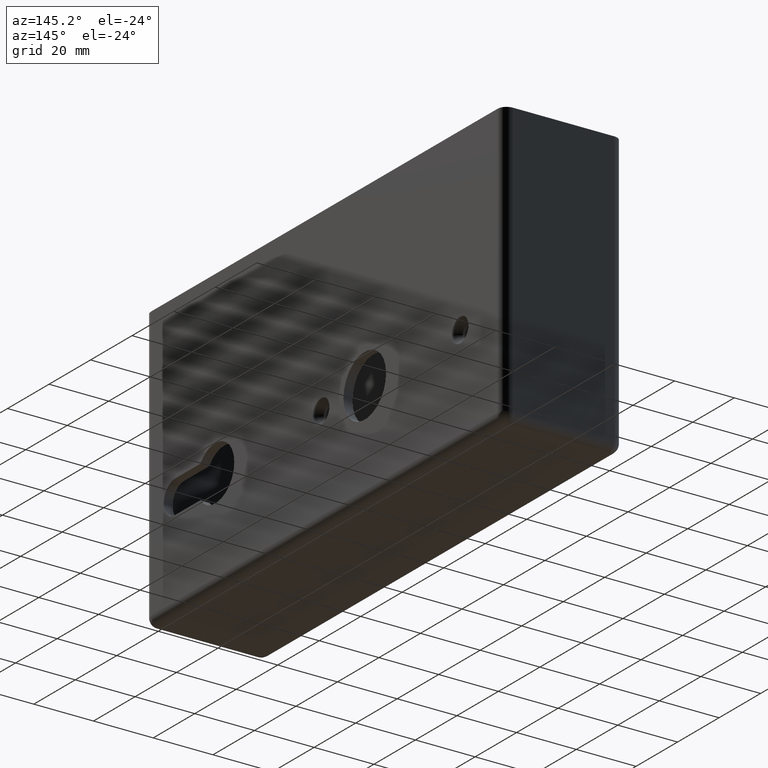
[diagram: clean part render]
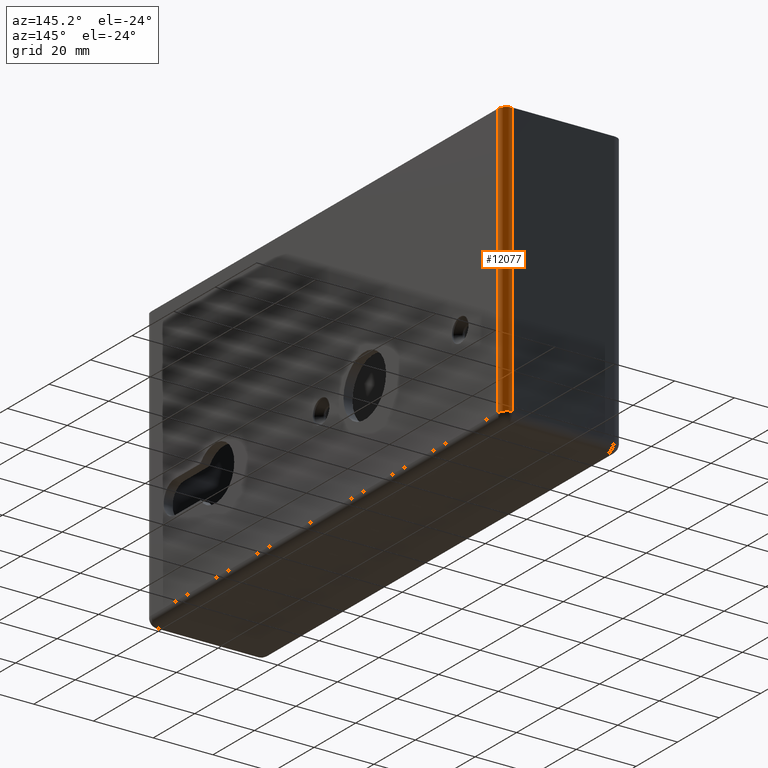
[diagram: same view with one face highlighted and labeled with its STEP entity id]
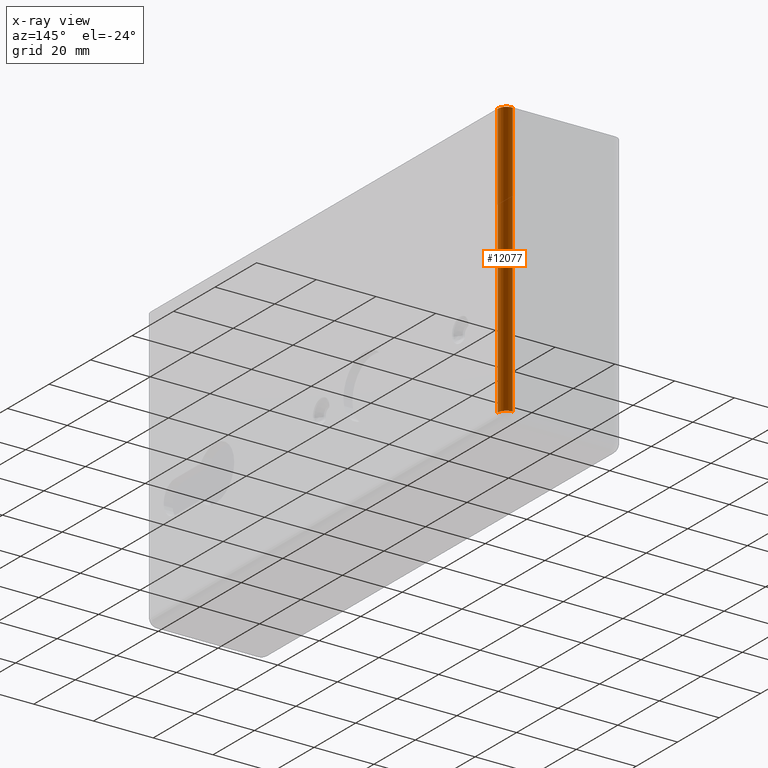
[diagram: x-ray of the same camera — body ghosted, the highlighted face saturated]
A machine part, auxiliary view. The second image highlights one B-rep face of the part: STEP entity #12077.
The next image is the same camera in x-ray: the body ghosted, the highlighted face saturated — about 0% of this face is hidden behind the body in this view.
In plain terms, the highlighted cylindrical surface (edge-blend (fillet) strip) has radius 3 mm, axis along (0, 0, -1).
Its self-contained STEP definition (entity closure, byte-faithful):
#60 = LINE ( 'NONE', #10505, #11283 ) ;
#71 = DIRECTION ( 'NONE',  ( 0.000000000000000000, 0.000000000000000000, -1.000000000000000000 ) ) ;
#205 = EDGE_CURVE ( 'NONE', #13269, #6410, #5753, .T. ) ;
#965 = VECTOR ( 'NONE', #4244, 1000.000000000000000 ) ;
#1430 = AXIS2_PLACEMENT_3D ( 'NONE', #12344, #71, #4293 ) ;
#1441 = AXIS2_PLACEMENT_3D ( 'NONE', #12552, #12681, #3449 ) ;
#1550 = CARTESIAN_POINT ( 'NONE',  ( 19.99999999999999289, 83.50000000000000000, 47.25000000000000000 ) ) ;
#1662 = ORIENTED_EDGE ( 'NONE', *, *, #7694, .F. ) ;
#2599 = CIRCLE ( 'NONE', #1441, 2.999999999999999112 ) ;
#2776 = CARTESIAN_POINT ( 'NONE',  ( 16.99999999999999289, 83.50000000000000000, 47.25000000000000000 ) ) ;
#3030 = ORIENTED_EDGE ( 'NONE', *, *, #205, .F. ) ;
#3334 = ORIENTED_EDGE ( 'NONE', *, *, #4612, .F. ) ;
#3363 = LINE ( 'NONE', #7203, #965 ) ;
#3449 = DIRECTION ( 'NONE',  ( 1.000000000000000000, 0.000000000000000000, 0.000000000000000000 ) ) ;
#3913 = FACE_OUTER_BOUND ( 'NONE', #9462, .T. ) ;
#4244 = DIRECTION ( 'NONE',  ( 0.000000000000000000, 0.000000000000000000, -1.000000000000000000 ) ) ;
#4293 = DIRECTION ( 'NONE',  ( -1.000000000000000000, 0.000000000000000000, 0.000000000000000000 ) ) ;
#4612 = EDGE_CURVE ( 'NONE', #6410, #12711, #60, .T. ) ;
#5753 = CIRCLE ( 'NONE', #1430, 2.999999999999999112 ) ;
#6410 = VERTEX_POINT ( 'NONE', #8952 ) ;
#6523 = VERTEX_POINT ( 'NONE', #13179 ) ;
#6580 = ORIENTED_EDGE ( 'NONE', *, *, #13115, .F. ) ;
#7203 = CARTESIAN_POINT ( 'NONE',  ( 16.99999999999999289, 86.50000000000001421, 47.25000000000000000 ) ) ;
#7694 = EDGE_CURVE ( 'NONE', #6523, #13269, #3363, .T. ) ;
#7905 = CYLINDRICAL_SURFACE ( 'NONE', #8805, 2.999999999999999112 ) ;
#8805 = AXIS2_PLACEMENT_3D ( 'NONE', #2776, #11862, #11906 ) ;
#8952 = CARTESIAN_POINT ( 'NONE',  ( 19.99999999999999289, 83.50000000000000000, -44.25000000000000000 ) ) ;
#9462 = EDGE_LOOP ( 'NONE', ( #6580, #3334, #3030, #1662 ) ) ;
#10505 = CARTESIAN_POINT ( 'NONE',  ( 19.99999999999999289, 83.50000000000000000, 47.25000000000000000 ) ) ;
#11067 = CARTESIAN_POINT ( 'NONE',  ( 16.99999999999999289, 86.50000000000001421, -44.25000000000000000 ) ) ;
#11283 = VECTOR ( 'NONE', #12601, 1000.000000000000000 ) ;
#11862 = DIRECTION ( 'NONE',  ( 0.000000000000000000, 0.000000000000000000, -1.000000000000000000 ) ) ;
#11906 = DIRECTION ( 'NONE',  ( -1.000000000000000000, 0.000000000000000000, 0.000000000000000000 ) ) ;
#12077 = ADVANCED_FACE ( 'NONE', ( #3913 ), #7905, .T. ) ;
#12344 = CARTESIAN_POINT ( 'NONE',  ( 16.99999999999999289, 83.50000000000000000, -44.25000000000000000 ) ) ;
#12552 = CARTESIAN_POINT ( 'NONE',  ( 16.99999999999999289, 83.50000000000000000, 47.25000000000000000 ) ) ;
#12601 = DIRECTION ( 'NONE',  ( -0.000000000000000000, -0.000000000000000000, 1.000000000000000000 ) ) ;
#12681 = DIRECTION ( 'NONE',  ( -0.000000000000000000, 0.000000000000000000, 1.000000000000000000 ) ) ;
#12711 = VERTEX_POINT ( 'NONE', #1550 ) ;
#13115 = EDGE_CURVE ( 'NONE', #12711, #6523, #2599, .T. ) ;
#13179 = CARTESIAN_POINT ( 'NONE',  ( 16.99999999999999289, 86.50000000000001421, 47.25000000000000000 ) ) ;
#13269 = VERTEX_POINT ( 'NONE', #11067 ) ;